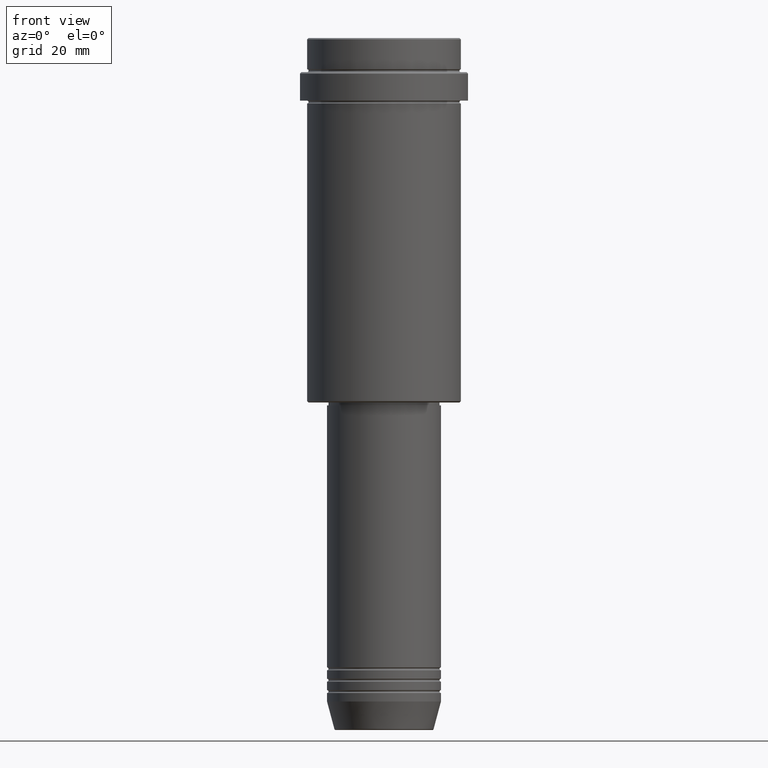
[diagram: clean part render]
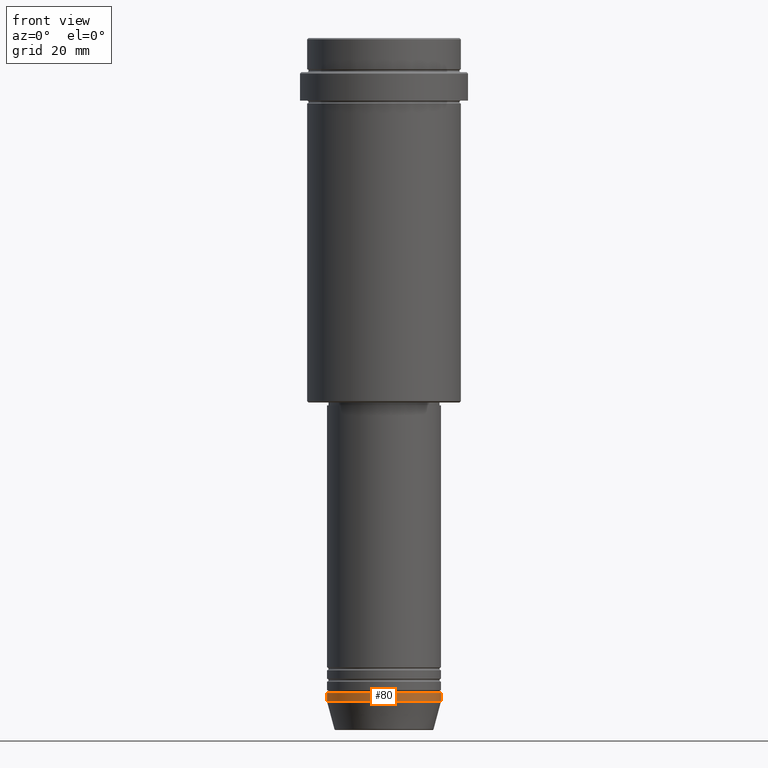
[diagram: same view with one face highlighted and labeled with its STEP entity id]
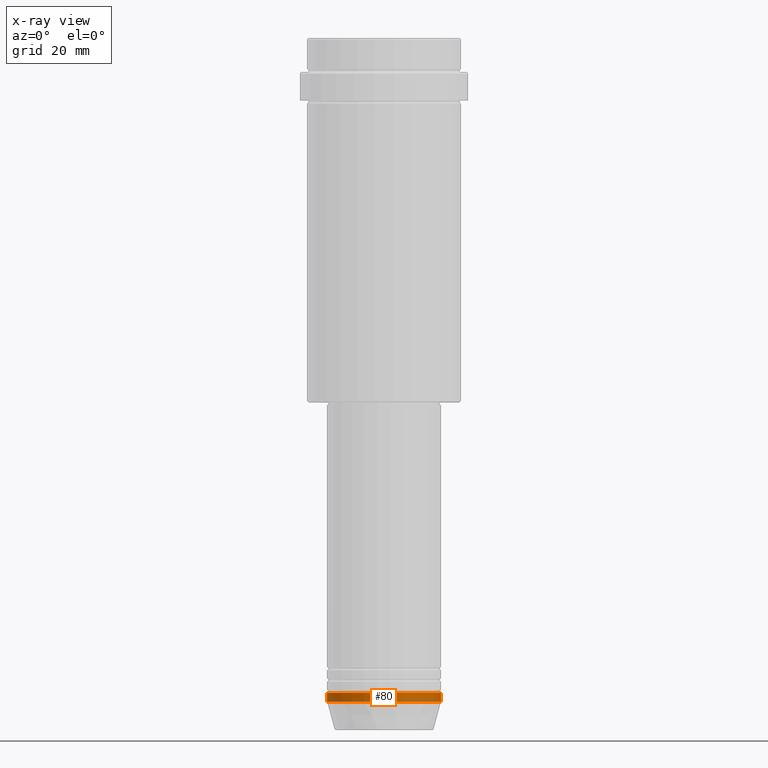
[diagram: x-ray of the same camera — body ghosted, the highlighted face saturated]
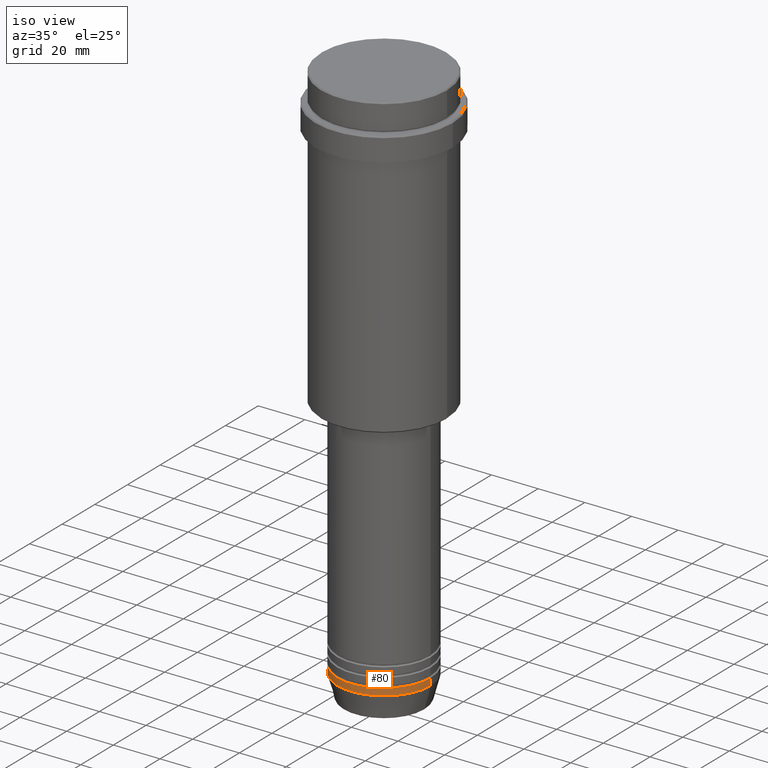
[diagram: same view with one face highlighted and labeled with its STEP entity id]
A machine part, front view. The second image highlights one B-rep face of the part: STEP entity #80.
The next image is the same camera in x-ray: the body ghosted, the highlighted face saturated — about 0% of this face is hidden behind the body in this view.
A second angle (iso view) of the same face is appended — the face is thin or edge-on in the first view.
In plain terms, the highlighted cylindrical surface (partial cylindrical patch) has radius 20 mm, axis along (-0, -0, 1).
Its self-contained STEP definition (entity closure, byte-faithful):
#4 = EDGE_CURVE ( 'NONE', #1248, #1259, #150, .T. ) ;
#43 = CARTESIAN_POINT ( 'NONE',  ( 20.00000000000000000, 0.000000000000000000, -232.9999999999999716 ) ) ;
#69 = CARTESIAN_POINT ( 'NONE',  ( 20.00000000000000000, 0.000000000000000000, -229.9999999999999716 ) ) ;
#80 = ADVANCED_FACE ( 'NONE', ( #94 ), #397, .T. ) ;
#94 = FACE_OUTER_BOUND ( 'NONE', #803, .T. ) ;
#118 = DIRECTION ( 'NONE',  ( 1.000000000000000000, 0.000000000000000000, 0.000000000000000000 ) ) ;
#150 = LINE ( 'NONE', #476, #769 ) ;
#185 = EDGE_CURVE ( 'NONE', #1248, #835, #316, .T. ) ;
#316 = CIRCLE ( 'NONE', #1334, 20.00000000000000000 ) ;
#362 = ORIENTED_EDGE ( 'NONE', *, *, #367, .T. ) ;
#367 = EDGE_CURVE ( 'NONE', #835, #435, #1010, .T. ) ;
#384 = DIRECTION ( 'NONE',  ( 1.000000000000000000, 0.000000000000000000, 0.000000000000000000 ) ) ;
#397 = CYLINDRICAL_SURFACE ( 'NONE', #770, 20.00000000000000000 ) ;
#415 = CARTESIAN_POINT ( 'NONE',  ( 0.000000000000000000, 0.000000000000000000, -232.9999999999999716 ) ) ;
#435 = VERTEX_POINT ( 'NONE', #69 ) ;
#476 = CARTESIAN_POINT ( 'NONE',  ( -20.00000000000000000, 2.449293598294706513E-15, 0.000000000000000000 ) ) ;
#568 = EDGE_CURVE ( 'NONE', #1259, #435, #1232, .T. ) ;
#591 = ORIENTED_EDGE ( 'NONE', *, *, #4, .F. ) ;
#695 = ORIENTED_EDGE ( 'NONE', *, *, #185, .T. ) ;
#716 = CARTESIAN_POINT ( 'NONE',  ( 0.000000000000000000, 0.000000000000000000, -229.9999999999999716 ) ) ;
#745 = DIRECTION ( 'NONE',  ( -0.000000000000000000, -0.000000000000000000, 1.000000000000000000 ) ) ;
#769 = VECTOR ( 'NONE', #1146, 1000.000000000000000 ) ;
#770 = AXIS2_PLACEMENT_3D ( 'NONE', #1067, #1389, #384 ) ;
#787 = CARTESIAN_POINT ( 'NONE',  ( -20.00000000000000000, 2.449293598294706513E-15, -229.9999999999999716 ) ) ;
#803 = EDGE_LOOP ( 'NONE', ( #591, #695, #362, #1171 ) ) ;
#835 = VERTEX_POINT ( 'NONE', #43 ) ;
#988 = DIRECTION ( 'NONE',  ( 1.000000000000000000, 0.000000000000000000, 0.000000000000000000 ) ) ;
#1010 = LINE ( 'NONE', #1215, #1319 ) ;
#1051 = DIRECTION ( 'NONE',  ( -0.000000000000000000, -0.000000000000000000, 1.000000000000000000 ) ) ;
#1067 = CARTESIAN_POINT ( 'NONE',  ( 0.000000000000000000, 0.000000000000000000, 0.000000000000000000 ) ) ;
#1126 = DIRECTION ( 'NONE',  ( -0.000000000000000000, -0.000000000000000000, 1.000000000000000000 ) ) ;
#1146 = DIRECTION ( 'NONE',  ( -0.000000000000000000, -0.000000000000000000, 1.000000000000000000 ) ) ;
#1171 = ORIENTED_EDGE ( 'NONE', *, *, #568, .F. ) ;
#1215 = CARTESIAN_POINT ( 'NONE',  ( 20.00000000000000000, 0.000000000000000000, 0.000000000000000000 ) ) ;
#1232 = CIRCLE ( 'NONE', #1384, 20.00000000000000000 ) ;
#1248 = VERTEX_POINT ( 'NONE', #1342 ) ;
#1259 = VERTEX_POINT ( 'NONE', #787 ) ;
#1319 = VECTOR ( 'NONE', #1126, 1000.000000000000000 ) ;
#1334 = AXIS2_PLACEMENT_3D ( 'NONE', #415, #745, #988 ) ;
#1342 = CARTESIAN_POINT ( 'NONE',  ( -20.00000000000000000, 2.449293598294706513E-15, -232.9999999999999716 ) ) ;
#1384 = AXIS2_PLACEMENT_3D ( 'NONE', #716, #1051, #118 ) ;
#1389 = DIRECTION ( 'NONE',  ( -0.000000000000000000, -0.000000000000000000, 1.000000000000000000 ) ) ;